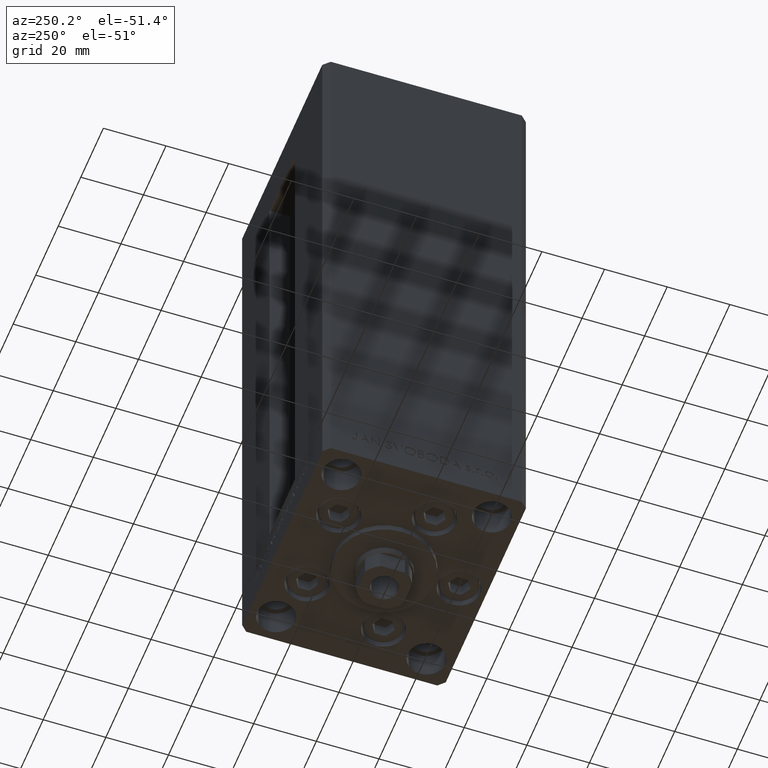
[diagram: clean part render]
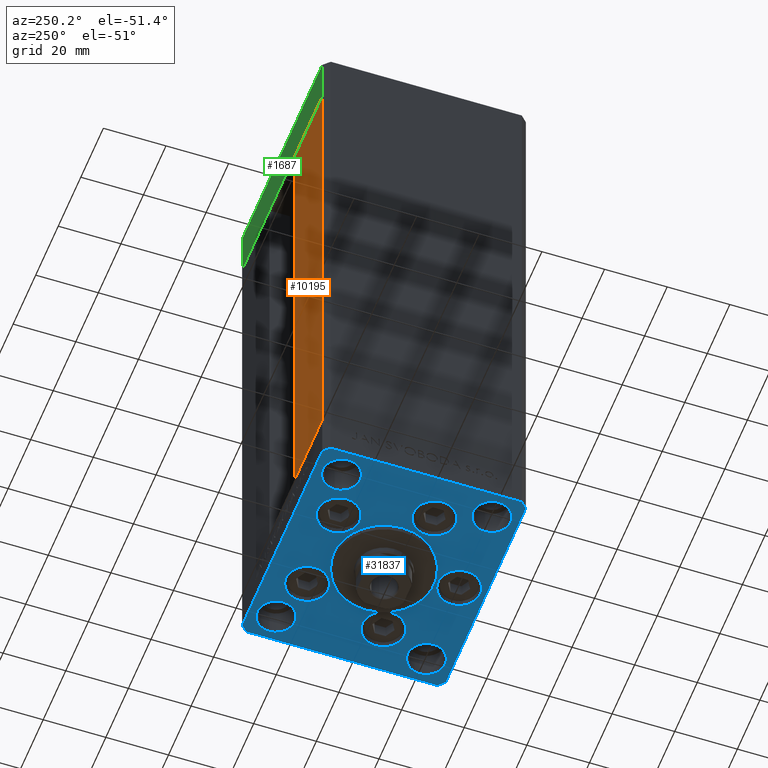
[diagram: same view with three faces highlighted in distinct colors, each labeled with its STEP entity id]
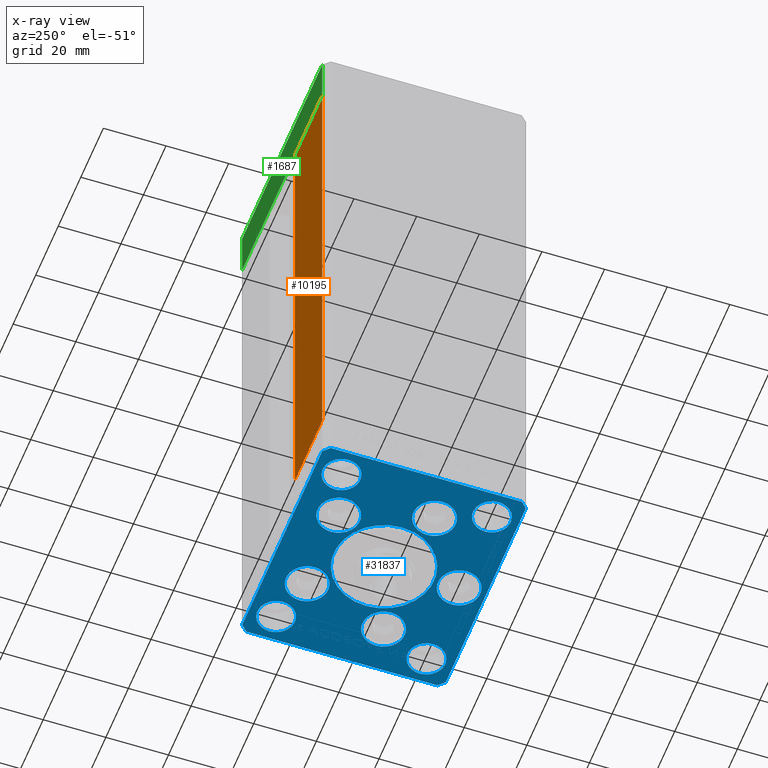
[diagram: x-ray of the same camera — body ghosted, the three highlighted faces saturated]
A machine part, auxiliary view with three faces highlighted in distinct colors.
The next image is the same camera in x-ray (body ghosted, the three faces saturated) — at least one of them is partly hidden behind the body in this view.
Their STEP definitions:

[orange] entity #10195 — the highlighted planar face has unit normal (0, -1, 0).
#1333 = CARTESIAN_POINT ( 'NONE',  ( -11.25000000000000178, 32.49999999999999289, 156.0000000000000000 ) ) ;
#3421 = FACE_OUTER_BOUND ( 'NONE', #42133, .T. ) ;
#5817 = VERTEX_POINT ( 'NONE', #13603 ) ;
#7116 = ORIENTED_EDGE ( 'NONE', *, *, #9200, .T. ) ;
#9200 = EDGE_CURVE ( 'NONE', #23521, #20408, #42579, .T. ) ;
#10195 = ADVANCED_FACE ( 'NONE', ( #3421 ), #22843, .F. ) ;
#10415 = AXIS2_PLACEMENT_3D ( 'NONE', #18607, #34299, #33798 ) ;
#10570 = LINE ( 'NONE', #17545, #14691 ) ;
#13432 = ORIENTED_EDGE ( 'NONE', *, *, #33188, .F. ) ;
#13603 = CARTESIAN_POINT ( 'NONE',  ( -35.50000000000000000, 32.49999999999999289, 156.0000000000000000 ) ) ;
#13905 = EDGE_CURVE ( 'NONE', #5817, #38090, #18045, .T. ) ;
#14691 = VECTOR ( 'NONE', #48460, 1000.000000000000000 ) ;
#17545 = CARTESIAN_POINT ( 'NONE',  ( -35.50000000000000000, 32.49999999999999289, 156.0000000000000000 ) ) ;
#18045 = LINE ( 'NONE', #44230, #40798 ) ;
#18607 = CARTESIAN_POINT ( 'NONE',  ( -11.25000000000000178, 32.49999999999999289, 156.0000000000000000 ) ) ;
#20408 = VERTEX_POINT ( 'NONE', #28096 ) ;
#21106 = DIRECTION ( 'NONE',  ( -1.000000000000000000, 0.000000000000000000, 0.000000000000000000 ) ) ;
#22843 = PLANE ( 'NONE',  #10415 ) ;
#23521 = VERTEX_POINT ( 'NONE', #42624 ) ;
#24748 = EDGE_CURVE ( 'NONE', #23521, #38090, #45537, .T. ) ;
#26320 = CARTESIAN_POINT ( 'NONE',  ( -11.25000000000000178, 32.49999999999999289, 0.000000000000000000 ) ) ;
#28096 = CARTESIAN_POINT ( 'NONE',  ( -35.50000000000000000, 32.49999999999999289, 0.000000000000000000 ) ) ;
#28564 = CARTESIAN_POINT ( 'NONE',  ( -11.25000000000000178, 32.49999999999999289, 0.000000000000000000 ) ) ;
#33188 = EDGE_CURVE ( 'NONE', #5817, #20408, #10570, .T. ) ;
#33220 = DIRECTION ( 'NONE',  ( 1.000000000000000000, 0.000000000000000000, 0.000000000000000000 ) ) ;
#33798 = DIRECTION ( 'NONE',  ( 0.000000000000000000, -0.000000000000000000, -1.000000000000000000 ) ) ;
#34299 = DIRECTION ( 'NONE',  ( 0.000000000000000000, -1.000000000000000000, 0.000000000000000000 ) ) ;
#36352 = VECTOR ( 'NONE', #49015, 1000.000000000000000 ) ;
#38090 = VERTEX_POINT ( 'NONE', #1333 ) ;
#39832 = VECTOR ( 'NONE', #21106, 1000.000000000000000 ) ;
#40798 = VECTOR ( 'NONE', #33220, 1000.000000000000000 ) ;
#42133 = EDGE_LOOP ( 'NONE', ( #46731, #42535, #7116, #13432 ) ) ;
#42535 = ORIENTED_EDGE ( 'NONE', *, *, #24748, .F. ) ;
#42579 = LINE ( 'NONE', #28564, #39832 ) ;
#42624 = CARTESIAN_POINT ( 'NONE',  ( -11.25000000000000178, 32.49999999999999289, 0.000000000000000000 ) ) ;
#44230 = CARTESIAN_POINT ( 'NONE',  ( -11.25000000000000178, 32.49999999999999289, 156.0000000000000000 ) ) ;
#45537 = LINE ( 'NONE', #26320, #36352 ) ;
#46731 = ORIENTED_EDGE ( 'NONE', *, *, #13905, .T. ) ;
#48460 = DIRECTION ( 'NONE',  ( -0.000000000000000000, -0.000000000000000000, -1.000000000000000000 ) ) ;
#49015 = DIRECTION ( 'NONE',  ( -0.000000000000000000, -0.000000000000000000, 1.000000000000000000 ) ) ;

[blue] entity #31837 — the highlighted planar face has unit normal (0, 0, -1).
#377 = AXIS2_PLACEMENT_3D ( 'NONE', #38026, #34511, #15599 ) ;
#523 = DIRECTION ( 'NONE',  ( -0.000000000000000000, 0.000000000000000000, 1.000000000000000000 ) ) ;
#668 = EDGE_CURVE ( 'NONE', #35046, #48859, #7103, .T. ) ;
#800 = EDGE_CURVE ( 'NONE', #48544, #35046, #35939, .T. ) ;
#1158 = VERTEX_POINT ( 'NONE', #31662 ) ;
#1305 = EDGE_LOOP ( 'NONE', ( #39036, #37909 ) ) ;
#1900 = CIRCLE ( 'NONE', #40104, 16.00000000000000355 ) ;
#2182 = CARTESIAN_POINT ( 'NONE',  ( -16.00000000000000355, -6.938893903907228378E-15, 0.000000000000000000 ) ) ;
#2552 = DIRECTION ( 'NONE',  ( 0.000000000000000000, 0.000000000000000000, 1.000000000000000000 ) ) ;
#2740 = EDGE_CURVE ( 'NONE', #36264, #22616, #16710, .T. ) ;
#3041 = ORIENTED_EDGE ( 'NONE', *, *, #11786, .F. ) ;
#3262 = CARTESIAN_POINT ( 'NONE',  ( 23.00000000000000711, -23.99999999999999645, 0.000000000000000000 ) ) ;
#3329 = EDGE_CURVE ( 'NONE', #19691, #36264, #9853, .T. ) ;
#3463 = DIRECTION ( 'NONE',  ( 1.000000000000000000, 0.000000000000000000, 0.000000000000000000 ) ) ;
#3697 = VECTOR ( 'NONE', #41367, 1000.000000000000000 ) ;
#3709 = ORIENTED_EDGE ( 'NONE', *, *, #27394, .F. ) ;
#3786 = ORIENTED_EDGE ( 'NONE', *, *, #49218, .T. ) ;
#5058 = CARTESIAN_POINT ( 'NONE',  ( -37.50000000000000000, -30.50000000000004263, 0.000000000000000000 ) ) ;
#5349 = DIRECTION ( 'NONE',  ( 0.000000000000000000, 0.000000000000000000, 1.000000000000000000 ) ) ;
#5404 = EDGE_LOOP ( 'NONE', ( #45688, #40253 ) ) ;
#5499 = DIRECTION ( 'NONE',  ( 1.000000000000000000, 0.000000000000000000, 0.000000000000000000 ) ) ;
#5564 = DIRECTION ( 'NONE',  ( 1.000000000000000000, 0.000000000000000000, 0.000000000000000000 ) ) ;
#6617 = DIRECTION ( 'NONE',  ( 1.000000000000000000, 0.000000000000000000, 0.000000000000000000 ) ) ;
#6949 = CARTESIAN_POINT ( 'NONE',  ( 29.00000000000000000, 24.00000000000000355, 0.000000000000000000 ) ) ;
#7018 = VERTEX_POINT ( 'NONE', #48457 ) ;
#7098 = VECTOR ( 'NONE', #38525, 1000.000000000000000 ) ;
#7103 = LINE ( 'NONE', #26276, #31725 ) ;
#7111 = DIRECTION ( 'NONE',  ( 0.000000000000000000, 0.000000000000000000, 1.000000000000000000 ) ) ;
#7303 = CARTESIAN_POINT ( 'NONE',  ( -37.50000000000000000, -30.50000000000004263, 0.000000000000000000 ) ) ;
#7312 = VERTEX_POINT ( 'NONE', #41420 ) ;
#7958 = VERTEX_POINT ( 'NONE', #17127 ) ;
#7965 = VECTOR ( 'NONE', #24075, 1000.000000000000000 ) ;
#8284 = AXIS2_PLACEMENT_3D ( 'NONE', #19929, #523, #20168 ) ;
#8479 = FACE_BOUND ( 'NONE', #17274, .T. ) ;
#8540 = CARTESIAN_POINT ( 'NONE',  ( 22.62741699796953299, -8.000000000000000000, 0.000000000000000000 ) ) ;
#8692 = DIRECTION ( 'NONE',  ( 1.000000000000000000, 0.000000000000000000, 0.000000000000000000 ) ) ;
#8722 = FACE_BOUND ( 'NONE', #5404, .T. ) ;
#9092 = CARTESIAN_POINT ( 'NONE',  ( 0.000000000000000000, -6.938893903907228378E-15, 0.000000000000000000 ) ) ;
#9309 = DIRECTION ( 'NONE',  ( -0.7071067811865524577, -0.7071067811865426878, 0.000000000000000000 ) ) ;
#9433 = VECTOR ( 'NONE', #9309, 1000.000000000000000 ) ;
#9642 = CARTESIAN_POINT ( 'NONE',  ( -35.00000000000000000, 24.00000000000000711, 0.000000000000000000 ) ) ;
#9644 = CIRCLE ( 'NONE', #27128, 6.749999999999997335 ) ;
#9853 = LINE ( 'NONE', #25046, #7965 ) ;
#9907 = EDGE_CURVE ( 'NONE', #15541, #49045, #35067, .T. ) ;
#9934 = CARTESIAN_POINT ( 'NONE',  ( -22.62741699796953299, -8.000000000000000000, 0.000000000000000000 ) ) ;
#10499 = AXIS2_PLACEMENT_3D ( 'NONE', #13280, #2552, #5564 ) ;
#10663 = CIRCLE ( 'NONE', #13856, 6.749999999999997335 ) ;
#10717 = ORIENTED_EDGE ( 'NONE', *, *, #668, .T. ) ;
#10728 = EDGE_CURVE ( 'NONE', #12408, #22077, #9644, .T. ) ;
#10838 = CARTESIAN_POINT ( 'NONE',  ( -35.50000000000000711, 32.49999999999997868, 0.000000000000000000 ) ) ;
#11115 = EDGE_CURVE ( 'NONE', #16994, #18480, #47894, .T. ) ;
#11307 = CIRCLE ( 'NONE', #10499, 6.000000000000001776 ) ;
#11409 = DIRECTION ( 'NONE',  ( 1.000000000000000000, 0.000000000000000000, 0.000000000000000000 ) ) ;
#11419 = VERTEX_POINT ( 'NONE', #2182 ) ;
#11461 = DIRECTION ( 'NONE',  ( 0.000000000000000000, 0.000000000000000000, 1.000000000000000000 ) ) ;
#11682 = EDGE_CURVE ( 'NONE', #27685, #40577, #34359, .T. ) ;
#11711 = CARTESIAN_POINT ( 'NONE',  ( -15.87741699796953476, -8.000000000000000000, 0.000000000000000000 ) ) ;
#11735 = FACE_BOUND ( 'NONE', #44482, .T. ) ;
#11786 = EDGE_CURVE ( 'NONE', #7018, #7312, #11307, .T. ) ;
#12206 = FACE_BOUND ( 'NONE', #19999, .T. ) ;
#12375 = CARTESIAN_POINT ( 'NONE',  ( -35.50000000000001421, -32.50000000000000711, 0.000000000000000000 ) ) ;
#12398 = EDGE_CURVE ( 'NONE', #1158, #32111, #20068, .T. ) ;
#12408 = VERTEX_POINT ( 'NONE', #29575 ) ;
#12695 = FACE_OUTER_BOUND ( 'NONE', #30920, .T. ) ;
#13280 = CARTESIAN_POINT ( 'NONE',  ( -29.00000000000000000, -23.99999999999999645, 0.000000000000000000 ) ) ;
#13288 = ORIENTED_EDGE ( 'NONE', *, *, #22419, .F. ) ;
#13856 = AXIS2_PLACEMENT_3D ( 'NONE', #37363, #33603, #29875 ) ;
#13975 = VECTOR ( 'NONE', #45698, 1000.000000000000000 ) ;
#14535 = LINE ( 'NONE', #33708, #13975 ) ;
#15170 = DIRECTION ( 'NONE',  ( 0.000000000000000000, 0.000000000000000000, 1.000000000000000000 ) ) ;
#15267 = DIRECTION ( 'NONE',  ( 0.000000000000000000, 0.000000000000000000, 1.000000000000000000 ) ) ;
#15312 = CARTESIAN_POINT ( 'NONE',  ( 35.00000000000000000, -23.99999999999999645, 0.000000000000000000 ) ) ;
#15541 = VERTEX_POINT ( 'NONE', #11711 ) ;
#15599 = DIRECTION ( 'NONE',  ( 1.000000000000000000, 0.000000000000000000, 0.000000000000000000 ) ) ;
#15686 = DIRECTION ( 'NONE',  ( 0.000000000000000000, 0.000000000000000000, 1.000000000000000000 ) ) ;
#15954 = FACE_BOUND ( 'NONE', #1305, .T. ) ;
#16115 = VERTEX_POINT ( 'NONE', #18813 ) ;
#16168 = EDGE_CURVE ( 'NONE', #11419, #7958, #35276, .T. ) ;
#16710 = LINE ( 'NONE', #32144, #19086 ) ;
#16994 = VERTEX_POINT ( 'NONE', #25117 ) ;
#17053 = EDGE_CURVE ( 'NONE', #45301, #30730, #40923, .T. ) ;
#17127 = CARTESIAN_POINT ( 'NONE',  ( 16.00000000000000355, -4.979459025271462852E-15, 0.000000000000000000 ) ) ;
#17163 = DIRECTION ( 'NONE',  ( 1.000000000000000000, 0.000000000000000000, 0.000000000000000000 ) ) ;
#17274 = EDGE_LOOP ( 'NONE', ( #18533, #45214 ) ) ;
#17364 = ORIENTED_EDGE ( 'NONE', *, *, #35353, .F. ) ;
#17765 = ORIENTED_EDGE ( 'NONE', *, *, #22578, .F. ) ;
#18295 = EDGE_CURVE ( 'NONE', #40577, #27685, #42553, .T. ) ;
#18480 = VERTEX_POINT ( 'NONE', #36219 ) ;
#18533 = ORIENTED_EDGE ( 'NONE', *, *, #11682, .F. ) ;
#18558 = DIRECTION ( 'NONE',  ( 1.000000000000000000, 0.000000000000000000, 0.000000000000000000 ) ) ;
#18680 = ORIENTED_EDGE ( 'NONE', *, *, #35030, .F. ) ;
#18813 = CARTESIAN_POINT ( 'NONE',  ( 35.00000000000000000, 24.00000000000000355, 0.000000000000000000 ) ) ;
#18883 = DIRECTION ( 'NONE',  ( 1.000000000000000000, 0.000000000000000000, 0.000000000000000000 ) ) ;
#18994 = CARTESIAN_POINT ( 'NONE',  ( 22.62741699796953299, -8.000000000000000000, 0.000000000000000000 ) ) ;
#19086 = VECTOR ( 'NONE', #48532, 1000.000000000000000 ) ;
#19113 = DIRECTION ( 'NONE',  ( 0.000000000000000000, 0.000000000000000000, 1.000000000000000000 ) ) ;
#19137 = VERTEX_POINT ( 'NONE', #9642 ) ;
#19440 = FACE_BOUND ( 'NONE', #39521, .T. ) ;
#19494 = CIRCLE ( 'NONE', #47361, 6.749999999999999112 ) ;
#19691 = VERTEX_POINT ( 'NONE', #29202 ) ;
#19802 = EDGE_LOOP ( 'NONE', ( #46778, #13288 ) ) ;
#19929 = CARTESIAN_POINT ( 'NONE',  ( 0.000000000000000000, 0.000000000000000000, 0.000000000000000000 ) ) ;
#19999 = EDGE_LOOP ( 'NONE', ( #33297, #31069 ) ) ;
#20068 = CIRCLE ( 'NONE', #43931, 6.750000000000000000 ) ;
#20168 = DIRECTION ( 'NONE',  ( 1.000000000000000000, 0.000000000000000000, 0.000000000000000000 ) ) ;
#20485 = ORIENTED_EDGE ( 'NONE', *, *, #20685, .T. ) ;
#20524 = ORIENTED_EDGE ( 'NONE', *, *, #45325, .F. ) ;
#20685 = EDGE_CURVE ( 'NONE', #28866, #48544, #14535, .T. ) ;
#21102 = CIRCLE ( 'NONE', #25084, 6.000000000000001776 ) ;
#21182 = DIRECTION ( 'NONE',  ( 0.000000000000000000, 0.000000000000000000, 1.000000000000000000 ) ) ;
#21886 = DIRECTION ( 'NONE',  ( 1.000000000000000000, 0.000000000000000000, 0.000000000000000000 ) ) ;
#22077 = VERTEX_POINT ( 'NONE', #35489 ) ;
#22419 = EDGE_CURVE ( 'NONE', #49045, #15541, #19494, .T. ) ;
#22475 = EDGE_CURVE ( 'NONE', #16115, #25408, #29116, .T. ) ;
#22489 = DIRECTION ( 'NONE',  ( 0.7071067811865512365, -0.7071067811865439090, 0.000000000000000000 ) ) ;
#22578 = EDGE_CURVE ( 'NONE', #19137, #47460, #48240, .T. ) ;
#22616 = VERTEX_POINT ( 'NONE', #44629 ) ;
#23075 = DIRECTION ( 'NONE',  ( 0.000000000000000000, 0.000000000000000000, 1.000000000000000000 ) ) ;
#23278 = DIRECTION ( 'NONE',  ( 0.000000000000000000, 0.000000000000000000, 1.000000000000000000 ) ) ;
#23330 = LINE ( 'NONE', #42762, #7098 ) ;
#23403 = ORIENTED_EDGE ( 'NONE', *, *, #37309, .T. ) ;
#23406 = AXIS2_PLACEMENT_3D ( 'NONE', #30351, #30098, #18883 ) ;
#23666 = PLANE ( 'NONE',  #8284 ) ;
#23999 = CARTESIAN_POINT ( 'NONE',  ( 13.99106857963324124, 19.50000000000000000, 0.000000000000000000 ) ) ;
#24075 = DIRECTION ( 'NONE',  ( 0.7071067811865463515, 0.7071067811865487940, 0.000000000000000000 ) ) ;
#24229 = CARTESIAN_POINT ( 'NONE',  ( 35.50000000000000000, 32.49999999999999289, 0.000000000000000000 ) ) ;
#24877 = CARTESIAN_POINT ( 'NONE',  ( -29.00000000000000000, -23.99999999999999645, 0.000000000000000000 ) ) ;
#25046 = CARTESIAN_POINT ( 'NONE',  ( 35.50000000000001421, -32.49999999999992184, 0.000000000000000000 ) ) ;
#25084 = AXIS2_PLACEMENT_3D ( 'NONE', #24877, #44076, #17163 ) ;
#25117 = CARTESIAN_POINT ( 'NONE',  ( 29.37741699796954364, -8.000000000000000000, 0.000000000000000000 ) ) ;
#25326 = CARTESIAN_POINT ( 'NONE',  ( -29.37741699796953654, -8.000000000000000000, 0.000000000000000000 ) ) ;
#25408 = VERTEX_POINT ( 'NONE', #42248 ) ;
#25824 = ORIENTED_EDGE ( 'NONE', *, *, #2740, .T. ) ;
#25840 = AXIS2_PLACEMENT_3D ( 'NONE', #6949, #48569, #21886 ) ;
#26033 = CARTESIAN_POINT ( 'NONE',  ( 0.000000000000000000, -6.938893903907228378E-15, 0.000000000000000000 ) ) ;
#26276 = CARTESIAN_POINT ( 'NONE',  ( -37.50000000000001421, 30.50000000000000000, 0.000000000000000000 ) ) ;
#26749 = AXIS2_PLACEMENT_3D ( 'NONE', #33585, #15170, #48322 ) ;
#26903 = FACE_BOUND ( 'NONE', #28283, .T. ) ;
#27039 = DIRECTION ( 'NONE',  ( 1.000000000000000000, 0.000000000000000000, 0.000000000000000000 ) ) ;
#27128 = AXIS2_PLACEMENT_3D ( 'NONE', #23999, #23278, #27965 ) ;
#27299 = AXIS2_PLACEMENT_3D ( 'NONE', #26033, #7111, #18558 ) ;
#27320 = CIRCLE ( 'NONE', #36893, 6.750000000001552536 ) ;
#27394 = EDGE_CURVE ( 'NONE', #30730, #45301, #27320, .T. ) ;
#27465 = CIRCLE ( 'NONE', #38617, 6.000000000000001776 ) ;
#27685 = VERTEX_POINT ( 'NONE', #15312 ) ;
#27965 = DIRECTION ( 'NONE',  ( 1.000000000000000000, 0.000000000000000000, 0.000000000000000000 ) ) ;
#28054 = EDGE_LOOP ( 'NONE', ( #18680, #3041 ) ) ;
#28239 = VECTOR ( 'NONE', #22489, 1000.000000000000000 ) ;
#28283 = EDGE_LOOP ( 'NONE', ( #30421, #3709 ) ) ;
#28284 = EDGE_CURVE ( 'NONE', #22077, #12408, #10663, .T. ) ;
#28734 = DIRECTION ( 'NONE',  ( 1.000000000000000000, 0.000000000000000000, 0.000000000000000000 ) ) ;
#28793 = AXIS2_PLACEMENT_3D ( 'NONE', #38592, #11461, #46094 ) ;
#28828 = CARTESIAN_POINT ( 'NONE',  ( -13.99106857963324124, 19.50000000000000000, 0.000000000000000000 ) ) ;
#28866 = VERTEX_POINT ( 'NONE', #24229 ) ;
#29116 = CIRCLE ( 'NONE', #25840, 6.000000000000001776 ) ;
#29202 = CARTESIAN_POINT ( 'NONE',  ( 35.50000000000001421, -32.49999999999992184, 0.000000000000000000 ) ) ;
#29575 = CARTESIAN_POINT ( 'NONE',  ( 20.74106857963323947, 19.50000000000000000, 0.000000000000000000 ) ) ;
#29875 = DIRECTION ( 'NONE',  ( 1.000000000000000000, 0.000000000000000000, 0.000000000000000000 ) ) ;
#30041 = AXIS2_PLACEMENT_3D ( 'NONE', #8540, #35907, #43162 ) ;
#30098 = DIRECTION ( 'NONE',  ( 0.000000000000000000, 0.000000000000000000, 1.000000000000000000 ) ) ;
#30327 = CARTESIAN_POINT ( 'NONE',  ( 29.00000000000000355, -23.99999999999999645, 0.000000000000000000 ) ) ;
#30351 = CARTESIAN_POINT ( 'NONE',  ( 0.000000000000000000, -24.00000000000001066, 0.000000000000000000 ) ) ;
#30421 = ORIENTED_EDGE ( 'NONE', *, *, #17053, .F. ) ;
#30626 = CARTESIAN_POINT ( 'NONE',  ( 37.50000000000000711, 30.50000000000001421, 0.000000000000000000 ) ) ;
#30730 = VERTEX_POINT ( 'NONE', #43247 ) ;
#30867 = CARTESIAN_POINT ( 'NONE',  ( -13.99106857963324124, 19.50000000000000000, 0.000000000000000000 ) ) ;
#30920 = EDGE_LOOP ( 'NONE', ( #37790, #3786, #41200, #25824, #23403, #20485, #48769, #10717 ) ) ;
#31069 = ORIENTED_EDGE ( 'NONE', *, *, #41195, .F. ) ;
#31169 = AXIS2_PLACEMENT_3D ( 'NONE', #30327, #19113, #11409 ) ;
#31229 = EDGE_CURVE ( 'NONE', #48859, #44152, #41432, .T. ) ;
#31408 = ORIENTED_EDGE ( 'NONE', *, *, #32399, .F. ) ;
#31662 = CARTESIAN_POINT ( 'NONE',  ( -7.241068579633241242, 19.50000000000000000, 0.000000000000000000 ) ) ;
#31725 = VECTOR ( 'NONE', #33995, 1000.000000000000000 ) ;
#31837 = ADVANCED_FACE ( 'NONE', ( #11735, #8722, #15954, #12206, #26903, #42618, #42131, #19440, #39113, #8479, #12695 ), #23666, .T. ) ;
#32052 = CARTESIAN_POINT ( 'NONE',  ( -20.74106857963324302, 19.50000000000000000, 0.000000000000000000 ) ) ;
#32111 = VERTEX_POINT ( 'NONE', #32052 ) ;
#32144 = CARTESIAN_POINT ( 'NONE',  ( 37.50000000000000711, -30.49999999999992895, 0.000000000000000000 ) ) ;
#32399 = EDGE_CURVE ( 'NONE', #7958, #11419, #1900, .T. ) ;
#33297 = ORIENTED_EDGE ( 'NONE', *, *, #11115, .F. ) ;
#33366 = ORIENTED_EDGE ( 'NONE', *, *, #22475, .F. ) ;
#33585 = CARTESIAN_POINT ( 'NONE',  ( -29.00000000000000000, 24.00000000000000711, 0.000000000000000000 ) ) ;
#33590 = CARTESIAN_POINT ( 'NONE',  ( 37.50000000000000711, -30.49999999999992895, 0.000000000000000000 ) ) ;
#33603 = DIRECTION ( 'NONE',  ( 0.000000000000000000, 0.000000000000000000, 1.000000000000000000 ) ) ;
#33708 = CARTESIAN_POINT ( 'NONE',  ( 35.50000000000000000, 32.49999999999999289, 0.000000000000000000 ) ) ;
#33899 = EDGE_LOOP ( 'NONE', ( #33366, #17364 ) ) ;
#33995 = DIRECTION ( 'NONE',  ( 2.275047181608926165E-16, -1.000000000000000000, 0.000000000000000000 ) ) ;
#34359 = CIRCLE ( 'NONE', #31169, 5.999999999999998224 ) ;
#34455 = CARTESIAN_POINT ( 'NONE',  ( 29.00000000000000000, 24.00000000000000355, 0.000000000000000000 ) ) ;
#34511 = DIRECTION ( 'NONE',  ( 0.000000000000000000, 0.000000000000000000, 1.000000000000000000 ) ) ;
#34791 = CIRCLE ( 'NONE', #30041, 6.750000000000009770 ) ;
#35030 = EDGE_CURVE ( 'NONE', #7312, #7018, #21102, .T. ) ;
#35046 = VERTEX_POINT ( 'NONE', #35844 ) ;
#35067 = CIRCLE ( 'NONE', #28793, 6.749999999999999112 ) ;
#35276 = CIRCLE ( 'NONE', #27299, 16.00000000000000355 ) ;
#35353 = EDGE_CURVE ( 'NONE', #25408, #16115, #27465, .T. ) ;
#35489 = CARTESIAN_POINT ( 'NONE',  ( 7.241068579633242130, 19.50000000000000000, 0.000000000000000000 ) ) ;
#35514 = CIRCLE ( 'NONE', #37927, 6.750000000000000000 ) ;
#35844 = CARTESIAN_POINT ( 'NONE',  ( -37.50000000000001421, 30.50000000000000000, 0.000000000000000000 ) ) ;
#35907 = DIRECTION ( 'NONE',  ( 0.000000000000000000, 0.000000000000000000, 1.000000000000000000 ) ) ;
#35939 = LINE ( 'NONE', #43680, #9433 ) ;
#36219 = CARTESIAN_POINT ( 'NONE',  ( 15.87741699796952410, -8.000000000000000000, 0.000000000000000000 ) ) ;
#36264 = VERTEX_POINT ( 'NONE', #33590 ) ;
#36893 = AXIS2_PLACEMENT_3D ( 'NONE', #45529, #23075, #27039 ) ;
#37158 = ORIENTED_EDGE ( 'NONE', *, *, #16168, .F. ) ;
#37309 = EDGE_CURVE ( 'NONE', #22616, #28866, #37374, .T. ) ;
#37334 = EDGE_CURVE ( 'NONE', #32111, #1158, #35514, .T. ) ;
#37363 = CARTESIAN_POINT ( 'NONE',  ( 13.99106857963324124, 19.50000000000000000, 0.000000000000000000 ) ) ;
#37374 = LINE ( 'NONE', #30626, #3697 ) ;
#37790 = ORIENTED_EDGE ( 'NONE', *, *, #31229, .T. ) ;
#37909 = ORIENTED_EDGE ( 'NONE', *, *, #28284, .F. ) ;
#37927 = AXIS2_PLACEMENT_3D ( 'NONE', #30867, #15686, #8692 ) ;
#38026 = CARTESIAN_POINT ( 'NONE',  ( 29.00000000000000355, -23.99999999999999645, 0.000000000000000000 ) ) ;
#38525 = DIRECTION ( 'NONE',  ( 1.000000000000000000, 1.172770800660376149E-15, 0.000000000000000000 ) ) ;
#38592 = CARTESIAN_POINT ( 'NONE',  ( -22.62741699796953299, -8.000000000000000000, 0.000000000000000000 ) ) ;
#38617 = AXIS2_PLACEMENT_3D ( 'NONE', #34455, #48258, #6617 ) ;
#39036 = ORIENTED_EDGE ( 'NONE', *, *, #10728, .F. ) ;
#39113 = FACE_BOUND ( 'NONE', #28054, .T. ) ;
#39521 = EDGE_LOOP ( 'NONE', ( #20524, #17765 ) ) ;
#39627 = CARTESIAN_POINT ( 'NONE',  ( -29.00000000000000000, 24.00000000000000711, 0.000000000000000000 ) ) ;
#39628 = CIRCLE ( 'NONE', #48405, 6.000000000000001776 ) ;
#40104 = AXIS2_PLACEMENT_3D ( 'NONE', #9092, #5349, #28734 ) ;
#40253 = ORIENTED_EDGE ( 'NONE', *, *, #37334, .F. ) ;
#40316 = DIRECTION ( 'NONE',  ( 1.000000000000000000, 0.000000000000000000, 0.000000000000000000 ) ) ;
#40577 = VERTEX_POINT ( 'NONE', #3262 ) ;
#40923 = CIRCLE ( 'NONE', #23406, 6.750000000001552536 ) ;
#41195 = EDGE_CURVE ( 'NONE', #18480, #16994, #34791, .T. ) ;
#41200 = ORIENTED_EDGE ( 'NONE', *, *, #3329, .T. ) ;
#41367 = DIRECTION ( 'NONE',  ( -0.7071067811865524577, 0.7071067811865426878, 0.000000000000000000 ) ) ;
#41420 = CARTESIAN_POINT ( 'NONE',  ( -23.00000000000000000, -23.99999999999999645, 0.000000000000000000 ) ) ;
#41432 = LINE ( 'NONE', #7303, #28239 ) ;
#41929 = DIRECTION ( 'NONE',  ( 1.000000000000000000, 0.000000000000000000, 0.000000000000000000 ) ) ;
#42131 = FACE_BOUND ( 'NONE', #33899, .T. ) ;
#42248 = CARTESIAN_POINT ( 'NONE',  ( 23.00000000000000000, 24.00000000000000355, 0.000000000000000000 ) ) ;
#42553 = CIRCLE ( 'NONE', #377, 5.999999999999998224 ) ;
#42618 = FACE_BOUND ( 'NONE', #19802, .T. ) ;
#42762 = CARTESIAN_POINT ( 'NONE',  ( -35.50000000000001421, -32.50000000000000711, 0.000000000000000000 ) ) ;
#43162 = DIRECTION ( 'NONE',  ( 1.000000000000000000, 0.000000000000000000, 0.000000000000000000 ) ) ;
#43247 = CARTESIAN_POINT ( 'NONE',  ( -6.750000000001552536, -24.00000000000001066, 0.000000000000000000 ) ) ;
#43680 = CARTESIAN_POINT ( 'NONE',  ( -35.50000000000000711, 32.49999999999997868, 0.000000000000000000 ) ) ;
#43861 = CARTESIAN_POINT ( 'NONE',  ( 6.750000000001552536, -24.00000000000001066, 0.000000000000000000 ) ) ;
#43931 = AXIS2_PLACEMENT_3D ( 'NONE', #28828, #44058, #40316 ) ;
#44058 = DIRECTION ( 'NONE',  ( 0.000000000000000000, 0.000000000000000000, 1.000000000000000000 ) ) ;
#44076 = DIRECTION ( 'NONE',  ( 0.000000000000000000, 0.000000000000000000, 1.000000000000000000 ) ) ;
#44152 = VERTEX_POINT ( 'NONE', #12375 ) ;
#44482 = EDGE_LOOP ( 'NONE', ( #37158, #31408 ) ) ;
#44629 = CARTESIAN_POINT ( 'NONE',  ( 37.50000000000000711, 30.50000000000001421, 0.000000000000000000 ) ) ;
#45214 = ORIENTED_EDGE ( 'NONE', *, *, #18295, .F. ) ;
#45301 = VERTEX_POINT ( 'NONE', #43861 ) ;
#45325 = EDGE_CURVE ( 'NONE', #47460, #19137, #39628, .T. ) ;
#45529 = CARTESIAN_POINT ( 'NONE',  ( 0.000000000000000000, -24.00000000000001066, 0.000000000000000000 ) ) ;
#45688 = ORIENTED_EDGE ( 'NONE', *, *, #12398, .F. ) ;
#45698 = DIRECTION ( 'NONE',  ( -1.000000000000000000, -1.954618001100627573E-16, 0.000000000000000000 ) ) ;
#46094 = DIRECTION ( 'NONE',  ( 1.000000000000000000, 0.000000000000000000, 0.000000000000000000 ) ) ;
#46308 = AXIS2_PLACEMENT_3D ( 'NONE', #18994, #15267, #41929 ) ;
#46491 = CARTESIAN_POINT ( 'NONE',  ( -23.00000000000000000, 24.00000000000000711, 0.000000000000000000 ) ) ;
#46778 = ORIENTED_EDGE ( 'NONE', *, *, #9907, .F. ) ;
#47361 = AXIS2_PLACEMENT_3D ( 'NONE', #9934, #47582, #3463 ) ;
#47460 = VERTEX_POINT ( 'NONE', #46491 ) ;
#47582 = DIRECTION ( 'NONE',  ( 0.000000000000000000, 0.000000000000000000, 1.000000000000000000 ) ) ;
#47894 = CIRCLE ( 'NONE', #46308, 6.750000000000009770 ) ;
#48240 = CIRCLE ( 'NONE', #26749, 6.000000000000001776 ) ;
#48258 = DIRECTION ( 'NONE',  ( 0.000000000000000000, 0.000000000000000000, 1.000000000000000000 ) ) ;
#48322 = DIRECTION ( 'NONE',  ( 1.000000000000000000, 0.000000000000000000, 0.000000000000000000 ) ) ;
#48405 = AXIS2_PLACEMENT_3D ( 'NONE', #39627, #21182, #5499 ) ;
#48457 = CARTESIAN_POINT ( 'NONE',  ( -35.00000000000000000, -23.99999999999999645, 0.000000000000000000 ) ) ;
#48532 = DIRECTION ( 'NONE',  ( 0.000000000000000000, 1.000000000000000000, 0.000000000000000000 ) ) ;
#48544 = VERTEX_POINT ( 'NONE', #10838 ) ;
#48569 = DIRECTION ( 'NONE',  ( 0.000000000000000000, 0.000000000000000000, 1.000000000000000000 ) ) ;
#48769 = ORIENTED_EDGE ( 'NONE', *, *, #800, .T. ) ;
#48859 = VERTEX_POINT ( 'NONE', #5058 ) ;
#49045 = VERTEX_POINT ( 'NONE', #25326 ) ;
#49218 = EDGE_CURVE ( 'NONE', #44152, #19691, #23330, .T. ) ;

[green] entity #1687 — the highlighted planar face has unit normal (-0, 1, 0).
#558 = CARTESIAN_POINT ( 'NONE',  ( 35.49999999999992184, 32.50000000000000711, 0.000000000000000000 ) ) ;
#816 = ORIENTED_EDGE ( 'NONE', *, *, #37846, .T. ) ;
#1687 = ADVANCED_FACE ( 'NONE', ( #25223 ), #39941, .T. ) ;
#2315 = DIRECTION ( 'NONE',  ( -1.000000000000000000, -1.954618001100629052E-16, 0.000000000000000000 ) ) ;
#2908 = VERTEX_POINT ( 'NONE', #25107 ) ;
#5813 = CARTESIAN_POINT ( 'NONE',  ( 35.49999999999992184, 32.50000000000000711, -15.00000000000000000 ) ) ;
#5915 = EDGE_LOOP ( 'NONE', ( #32218, #18917, #816, #46138 ) ) ;
#9049 = VECTOR ( 'NONE', #36602, 1000.000000000000000 ) ;
#9837 = CARTESIAN_POINT ( 'NONE',  ( 35.49999999999992184, 32.50000000000000711, -15.00000000000000000 ) ) ;
#10388 = VERTEX_POINT ( 'NONE', #9837 ) ;
#11888 = EDGE_CURVE ( 'NONE', #10388, #42802, #28212, .T. ) ;
#15078 = LINE ( 'NONE', #37745, #21970 ) ;
#16514 = EDGE_CURVE ( 'NONE', #42802, #28224, #28873, .T. ) ;
#18804 = DIRECTION ( 'NONE',  ( -1.000000000000000000, -1.954618001100629052E-16, 0.000000000000000000 ) ) ;
#18917 = ORIENTED_EDGE ( 'NONE', *, *, #11888, .F. ) ;
#18945 = VECTOR ( 'NONE', #21273, 1000.000000000000000 ) ;
#21273 = DIRECTION ( 'NONE',  ( 0.000000000000000000, 0.000000000000000000, 1.000000000000000000 ) ) ;
#21970 = VECTOR ( 'NONE', #18804, 1000.000000000000000 ) ;
#25107 = CARTESIAN_POINT ( 'NONE',  ( -35.50000000000002842, 32.49999999999999289, -15.00000000000000000 ) ) ;
#25223 = FACE_OUTER_BOUND ( 'NONE', #5915, .T. ) ;
#25394 = CARTESIAN_POINT ( 'NONE',  ( 35.49999999999992184, 32.50000000000000711, 0.000000000000000000 ) ) ;
#25493 = LINE ( 'NONE', #35978, #18945 ) ;
#28212 = LINE ( 'NONE', #32686, #38351 ) ;
#28224 = VERTEX_POINT ( 'NONE', #29621 ) ;
#28873 = LINE ( 'NONE', #25394, #9049 ) ;
#29621 = CARTESIAN_POINT ( 'NONE',  ( -35.50000000000002842, 32.49999999999999289, 0.000000000000000000 ) ) ;
#32218 = ORIENTED_EDGE ( 'NONE', *, *, #16514, .F. ) ;
#32686 = CARTESIAN_POINT ( 'NONE',  ( 35.49999999999992184, 32.50000000000000711, -15.00000000000000000 ) ) ;
#35978 = CARTESIAN_POINT ( 'NONE',  ( -35.50000000000002842, 32.49999999999999289, -15.00000000000000000 ) ) ;
#36432 = DIRECTION ( 'NONE',  ( -1.954618001100629052E-16, 1.000000000000000000, 0.000000000000000000 ) ) ;
#36516 = AXIS2_PLACEMENT_3D ( 'NONE', #5813, #36432, #2315 ) ;
#36602 = DIRECTION ( 'NONE',  ( -1.000000000000000000, -1.954618001100629052E-16, 0.000000000000000000 ) ) ;
#37745 = CARTESIAN_POINT ( 'NONE',  ( 35.49999999999992184, 32.50000000000000711, -15.00000000000000000 ) ) ;
#37846 = EDGE_CURVE ( 'NONE', #10388, #2908, #15078, .T. ) ;
#38351 = VECTOR ( 'NONE', #47921, 1000.000000000000000 ) ;
#39941 = PLANE ( 'NONE',  #36516 ) ;
#42280 = EDGE_CURVE ( 'NONE', #2908, #28224, #25493, .T. ) ;
#42802 = VERTEX_POINT ( 'NONE', #558 ) ;
#46138 = ORIENTED_EDGE ( 'NONE', *, *, #42280, .T. ) ;
#47921 = DIRECTION ( 'NONE',  ( 0.000000000000000000, 0.000000000000000000, 1.000000000000000000 ) ) ;